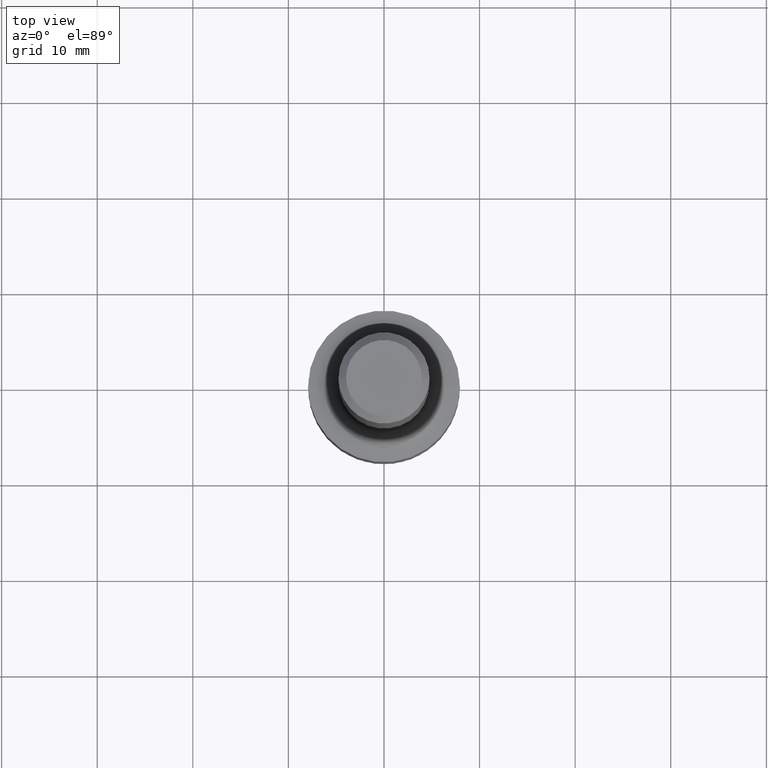
[diagram: clean part render]
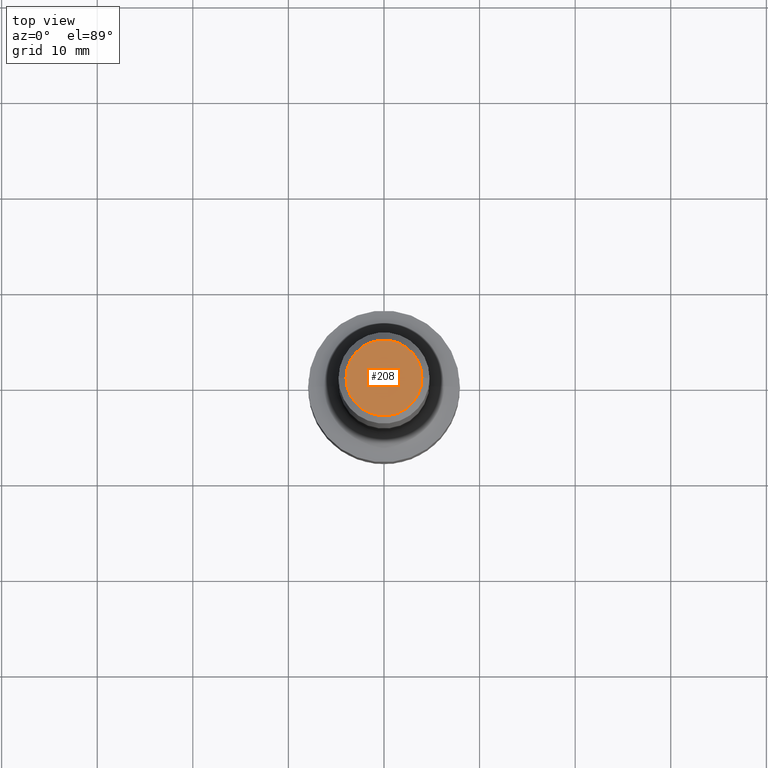
[diagram: same view with one face highlighted and labeled with its STEP entity id]
A machine part, top view. The second image highlights one B-rep face of the part: STEP entity #208.
In plain terms, the highlighted planar face has unit normal (0, -0, -1).
Its self-contained STEP definition (entity closure, byte-faithful):
#28 = ORIENTED_EDGE ( 'NONE', *, *, #288, .T. ) ;
#52 = CARTESIAN_POINT ( 'NONE',  ( -0.1563000000000000500, 1.145904175408315963E-15, 7.654042494663141351E-18 ) ) ;
#64 = CARTESIAN_POINT ( 'NONE',  ( 1.091437066522363671E-15, 0.1563000000000000500, -5.418915120138483345E-16 ) ) ;
#69 = CARTESIAN_POINT ( 'NONE',  ( 0.1563000000000000500, -1.233786714702880152E-15, 7.654042494679095754E-18 ) ) ;
#96 = DIRECTION ( 'NONE',  ( -2.445468806185136597E-29, 3.491481338843145583E-15, 1.000000000000000000 ) ) ;
#122 = VERTEX_POINT ( 'NONE', #52 ) ;
#137 = PLANE ( 'NONE',  #235 ) ;
#146 = CIRCLE ( 'NONE', #450, 0.1563000000000000500 ) ;
#172 = CIRCLE ( 'NONE', #431, 0.1563000000000000500 ) ;
#208 = ADVANCED_FACE ( 'NONE', ( #223 ), #137, .F. ) ;
#223 = FACE_OUTER_BOUND ( 'NONE', #225, .T. ) ;
#225 = EDGE_LOOP ( 'NONE', ( #493, #28 ) ) ;
#228 = CARTESIAN_POINT ( 'NONE',  ( -1.871772216193331159E-46, 2.672394653685611172E-32, 7.654042494670965249E-18 ) ) ;
#235 = AXIS2_PLACEMENT_3D ( 'NONE', #64, #304, #342 ) ;
#268 = DIRECTION ( 'NONE',  ( 1.000000000000000000, -6.982962677686266711E-15, 4.876046809215620980E-29 ) ) ;
#288 = EDGE_CURVE ( 'NONE', #399, #122, #172, .T. ) ;
#304 = DIRECTION ( 'NONE',  ( 2.438088387897960049E-29, -3.491481338843145188E-15, -1.000000000000000000 ) ) ;
#319 = DIRECTION ( 'NONE',  ( -2.445468806185136597E-29, 3.491481338843145583E-15, 1.000000000000000000 ) ) ;
#342 = DIRECTION ( 'NONE',  ( -1.000000000000000000, 6.982962677686265922E-15, -4.876176775795935793E-29 ) ) ;
#381 = CARTESIAN_POINT ( 'NONE',  ( -1.871772216193331159E-46, 2.672394653685611172E-32, 7.654042494670965249E-18 ) ) ;
#399 = VERTEX_POINT ( 'NONE', #69 ) ;
#431 = AXIS2_PLACEMENT_3D ( 'NONE', #381, #96, #268 ) ;
#450 = AXIS2_PLACEMENT_3D ( 'NONE', #228, #319, #513 ) ;
#455 = EDGE_CURVE ( 'NONE', #122, #399, #146, .T. ) ;
#493 = ORIENTED_EDGE ( 'NONE', *, *, #455, .T. ) ;
#513 = DIRECTION ( 'NONE',  ( 1.000000000000000000, -6.982962677686266711E-15, 4.876046809215620980E-29 ) ) ;